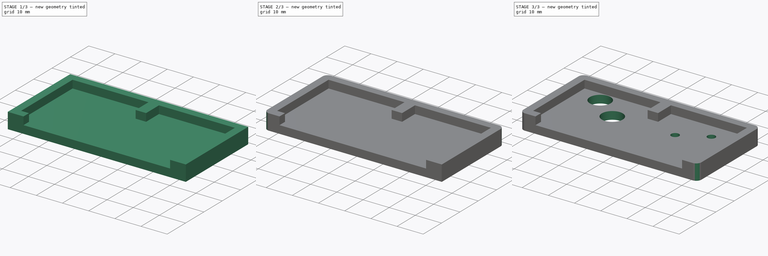
[diagram: build sequence overview — one tinted view per stage of 3, left to right]
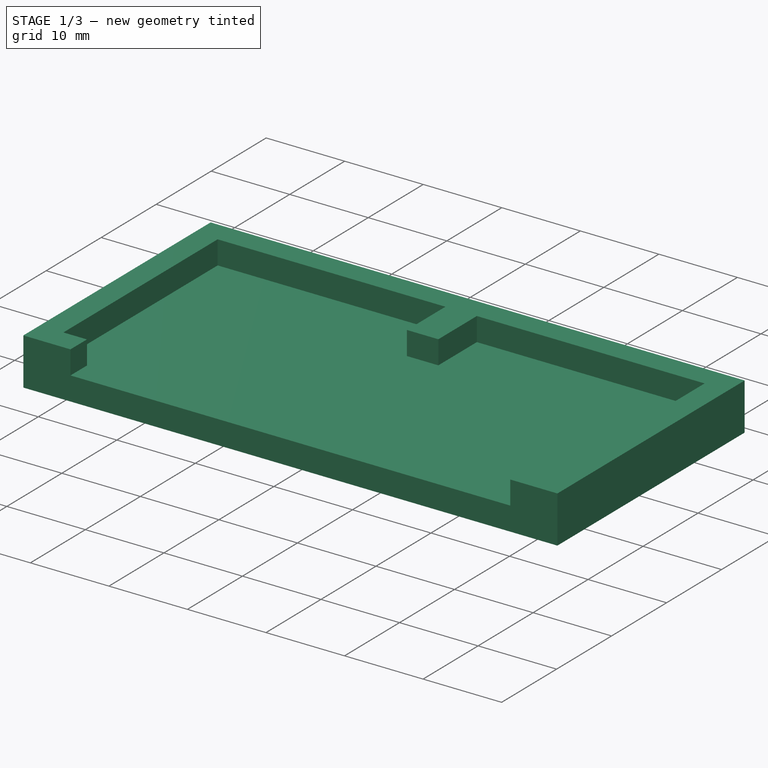
[diagram: stage 1 of 3 — iso view after this stage's code; geometry added in this stage tinted green]
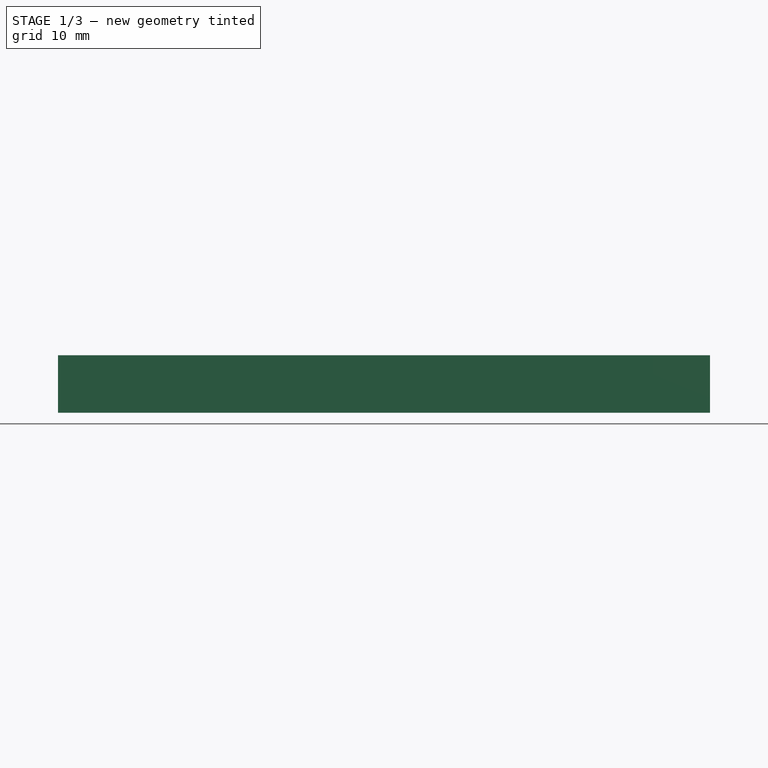
[diagram: stage 1 of 3 — front view after this stage's code; geometry added in this stage tinted green]
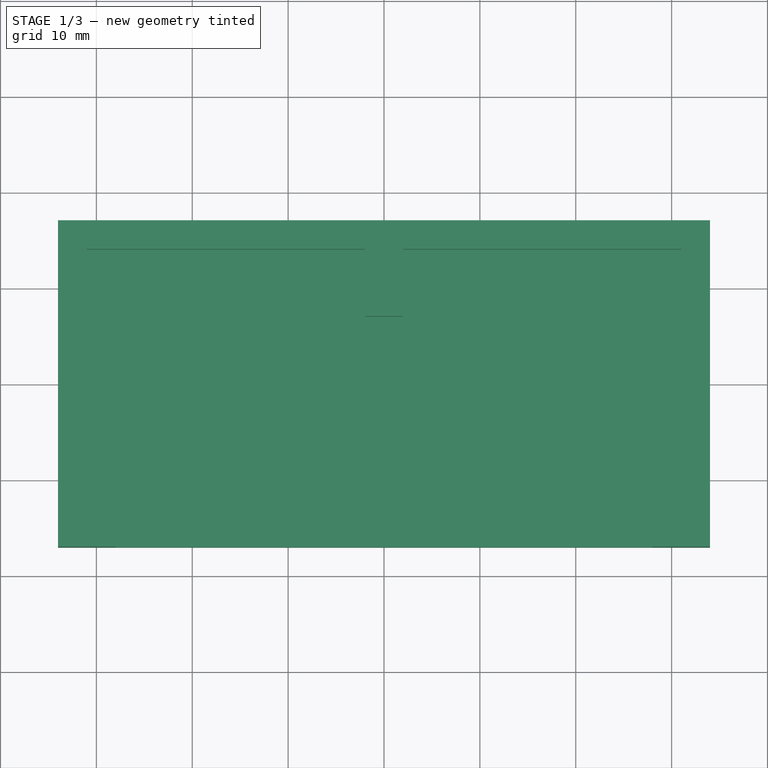
[diagram: stage 1 of 3 — top view after this stage's code; geometry added in this stage tinted green]
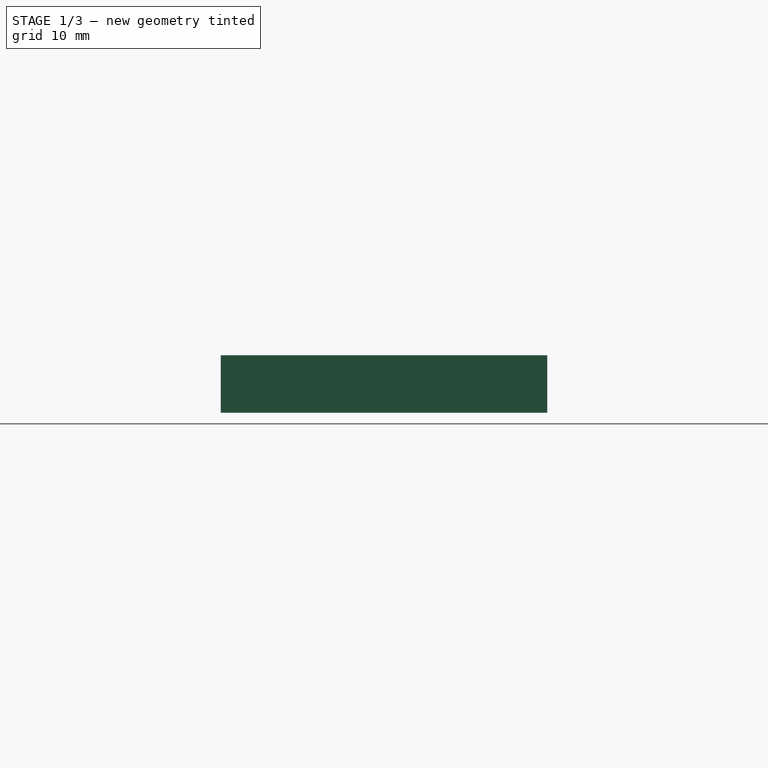
[diagram: stage 1 of 3 — right view after this stage's code; geometry added in this stage tinted green]
FCSTD DOCUMENT  (FreeCAD 1.0R38641 +678 (Git))
Label: Cutter Outer Body v1
License: All rights reserved
LicenseURL: https://en.wikipedia.org/wiki/All_rights_reserved
objects: PartDesign::Fillet×4, Sketcher::SketchObject×3, PartDesign::Pad×2, PartDesign::Pocket×1, PartDesign::Body×1
note: 28 computed .brp shape members not serialized (recipe doc carries the construction recipe); baked Part::Feature solids carry a one-line shape summary decoded from their .brp

FEATURE [Sketcher::SketchObject] Sketch
  ArcFitTolerance = 1e-06
  AttachmentSupport = -> [XY_Plane]
  FullyConstrained = true
  MakeInternals = false
  MapMode = 5
  sketch-geometry (4):
    g0: LineSegment StartX=-34 StartY=17.05 StartZ=0 EndX=-34 EndY=-17 EndZ=0
    g1: LineSegment StartX=-34 StartY=-17 StartZ=0 EndX=34 EndY=-17 EndZ=0
    g2: LineSegment StartX=34 StartY=-17 StartZ=0 EndX=34 EndY=17.05 EndZ=0
    g3: LineSegment StartX=34 StartY=17.05 StartZ=0 EndX=-34 EndY=17.05 EndZ=0
  constraints (12):
    c: Coincident(g0,g1)
    c: Coincident(g1,g2)
    c: Coincident(g2,g3)
    c: Coincident(g3,g0)
    c: Vertical(g0)
    c: Vertical(g2)
    c: Horizontal(g1)
    c: Horizontal(g3)
    c: DistanceX(g3,g3) = 68
    c: DistanceX(g0,g-1) = 34
    c: DistanceY(g2,g2) = 34.05
    c: DistanceY(g1,g-1) = 17
FEATURE [PartDesign::Pad] Pad
  Direction = (0,0,1)
  Length = 3
  Length2 = 10
  Profile = -> Sketch
  ReferenceAxis = -> Sketch [N_Axis]
  Refine = true
  Suppressed = false
  Type = 0
FEATURE [Sketcher::SketchObject] Sketch001
  ArcFitTolerance = 1e-06
  AttachmentSupport = -> [Pad]
  ExternalGeometry = -> [Pad]
  FullyConstrained = true
  MakeInternals = false
  MapMode = 5
  Placement = pos=(0,0,3) rot=(0,0,1;0rad)
  sketch-geometry (16):
    g0: LineSegment StartX=-34 StartY=17.05 StartZ=0 EndX=-34 EndY=-17 EndZ=0
    g1: LineSegment StartX=-34 StartY=-17 StartZ=0 EndX=-28 EndY=-17 EndZ=0
    g2: LineSegment StartX=34 StartY=-17 StartZ=0 EndX=28 EndY=-17 EndZ=0
    g3: LineSegment StartX=34 StartY=-17 StartZ=0 EndX=34 EndY=17.05 EndZ=0
    g4: LineSegment StartX=34 StartY=17.05 StartZ=0 EndX=-34 EndY=17.05 EndZ=0
    g5: LineSegment StartX=-28 StartY=-17 StartZ=0 EndX=-28 EndY=-14 EndZ=0
    g6: LineSegment StartX=-28 StartY=-14 StartZ=0 EndX=-31 EndY=-14 EndZ=0
    g7: LineSegment StartX=-31 StartY=-14 StartZ=0 EndX=-31 EndY=14.05 EndZ=0
    g8: LineSegment StartX=-31 StartY=14.05 StartZ=0 EndX=-2 EndY=14.05 EndZ=0
    g9: LineSegment StartX=31 StartY=14.05 StartZ=0 EndX=31 EndY=-14 EndZ=0
    g10: LineSegment StartX=31 StartY=-14 StartZ=0 EndX=28 EndY=-14 EndZ=0
    g11: LineSegment StartX=28 StartY=-14 StartZ=0 EndX=28 EndY=-17 EndZ=0
    g12: LineSegment StartX=-2 StartY=14.05 StartZ=0 EndX=-2 EndY=7.05 EndZ=0
    g13: LineSegment StartX=-2 StartY=7.05 StartZ=0 EndX=2 EndY=7.05 EndZ=0
    g14: LineSegment StartX=2 StartY=7.05 StartZ=0 EndX=2 EndY=14.05 EndZ=0
    g15: LineSegment StartX=2 StartY=14.05 StartZ=0 EndX=31 EndY=14.05 EndZ=0
  constraints (45):
    c: Coincident(g0,g-6)
    c: Coincident(g0,g-6)
    c: Coincident(g1,g0)
    c: PointOnObject(g1,g-5)
    c: Coincident(g2,g-5)
    c: PointOnObject(g2,g-5)
    c: Coincident(g3,g2)
    c: Coincident(g3,g-4)
    c: Coincident(g4,g3)
    c: Coincident(g4,g0)
    c: Coincident(g5,g1)
    c: Vertical(g5)
    c: Coincident(g6,g5)
    c: Horizontal(g6)
    c: Coincident(g7,g6)
    c: Vertical(g7)
    c: Coincident(g8,g7)
    c: Horizontal(g8)
    c: Coincident(g9,g15)
    c: Vertical(g9)
    c: Coincident(g10,g9)
    c: Horizontal(g10)
    c: Coincident(g11,g10)
    c: Coincident(g11,g2)
    c: DistanceX(g0,g7) = 3
    c: DistanceY(g7,g0) = 3
    c: DistanceX(g15,g3) = 3
    c: DistanceX(g0,g1) = 6
    c: DistanceX(g2,g2) = 6
    c: Vertical(g11)
    c: DistanceY(g1,g5) = 3
    c: DistanceY(g2,g10) = 3
    c: Vertical(g12)
    c: Coincident(g13,g12)
    c: Horizontal(g13)
    c: Coincident(g14,g13)
    c: PointOnObject(g14,g15)
    c: Vertical(g14)
    c: Coincident(g8,g12)
    c: PointOnObject(g15,g14)
    c: DistanceX(g13,g13) = 4
    c: DistanceX(g-1,g13) = 2
    c: DistanceY(g13,g14) = 7
    c: Horizontal(g15)
    c: DistanceY(g9,g3) = 3
FEATURE [PartDesign::Pad] Pad001
  BaseFeature = -> Pad
  Direction = (0,0,1)
  Length = 3
  Length2 = 10
  Profile = -> Sketch001
  ReferenceAxis = -> Sketch001 [N_Axis]
  Refine = true
  Suppressed = false
  Type = 0
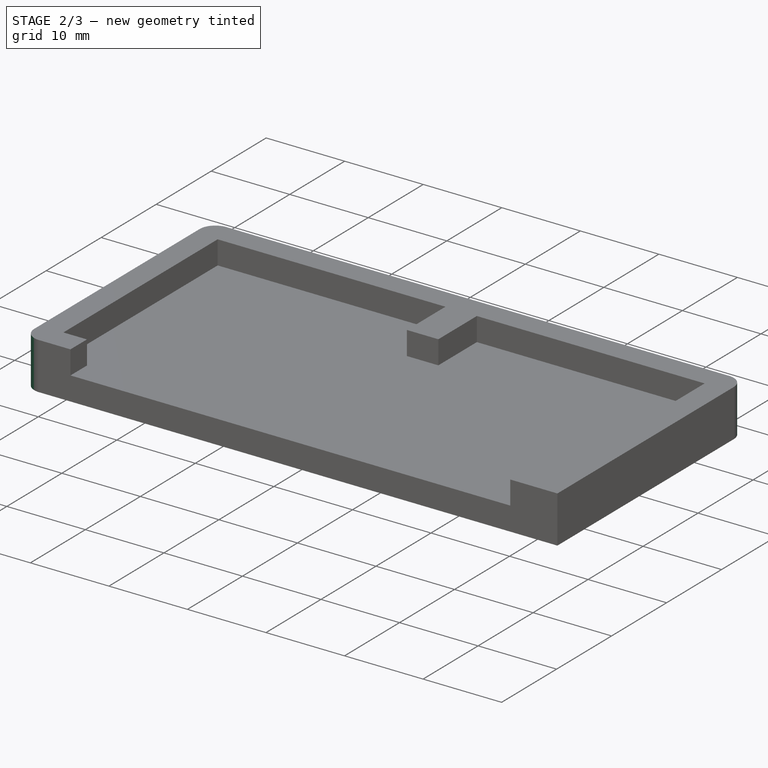
[diagram: stage 2 of 3 — iso view after this stage's code; geometry added in this stage tinted green]
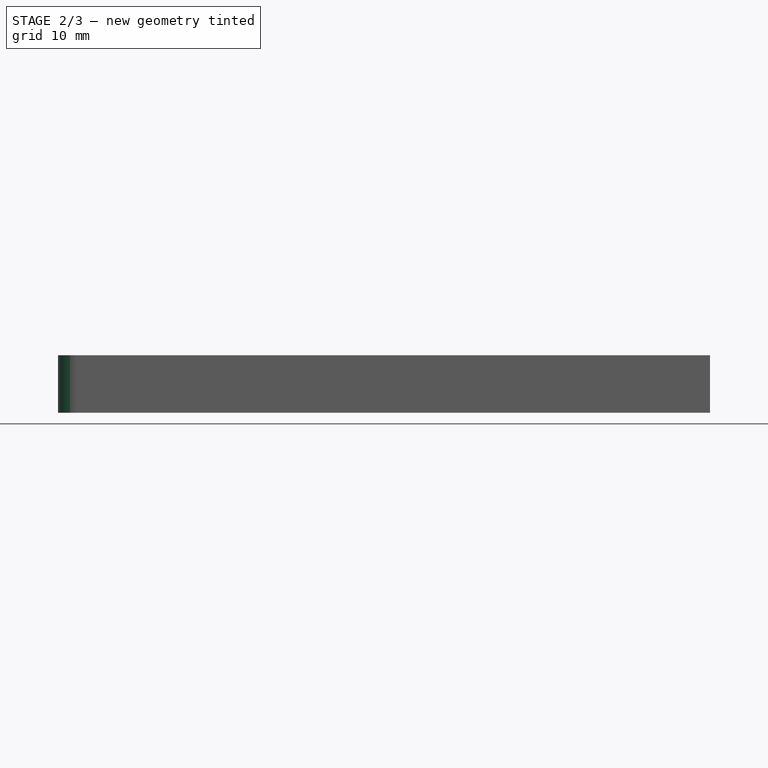
[diagram: stage 2 of 3 — front view after this stage's code; geometry added in this stage tinted green]
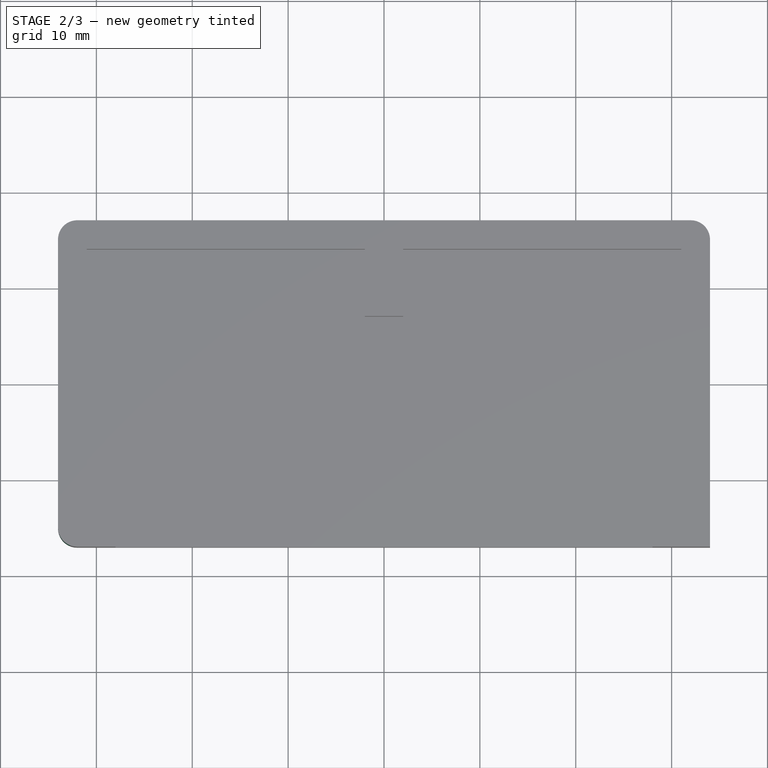
[diagram: stage 2 of 3 — top view after this stage's code; geometry added in this stage tinted green]
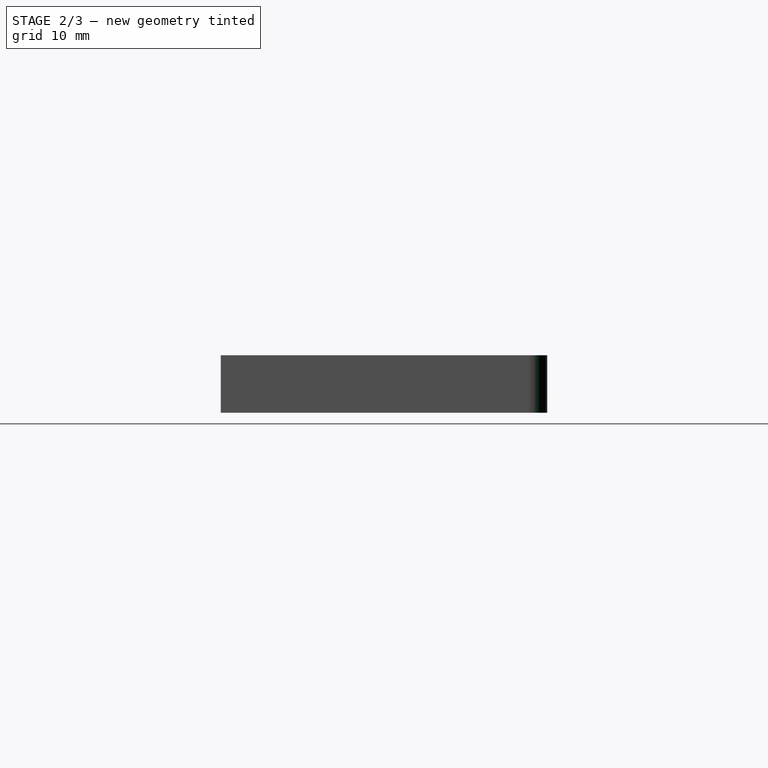
[diagram: stage 2 of 3 — right view after this stage's code; geometry added in this stage tinted green]
FEATURE [PartDesign::Fillet] Fillet
  Base = -> Pad001 [Edge5]
  BaseFeature = -> Pad001
  Radius = 2
  Refine = true
  SupportTransform = false
  Suppressed = false
  UseAllEdges = false
FEATURE [PartDesign::Fillet] Fillet001
  Base = -> Fillet [Edge7]
  BaseFeature = -> Fillet
  Radius = 2
  Refine = true
  SupportTransform = false
  Suppressed = false
  UseAllEdges = false
FEATURE [PartDesign::Fillet] Fillet002
  Base = -> Fillet001 [Edge14]
  BaseFeature = -> Fillet001
  Radius = 2
  Refine = true
  SupportTransform = false
  Suppressed = false
  UseAllEdges = false
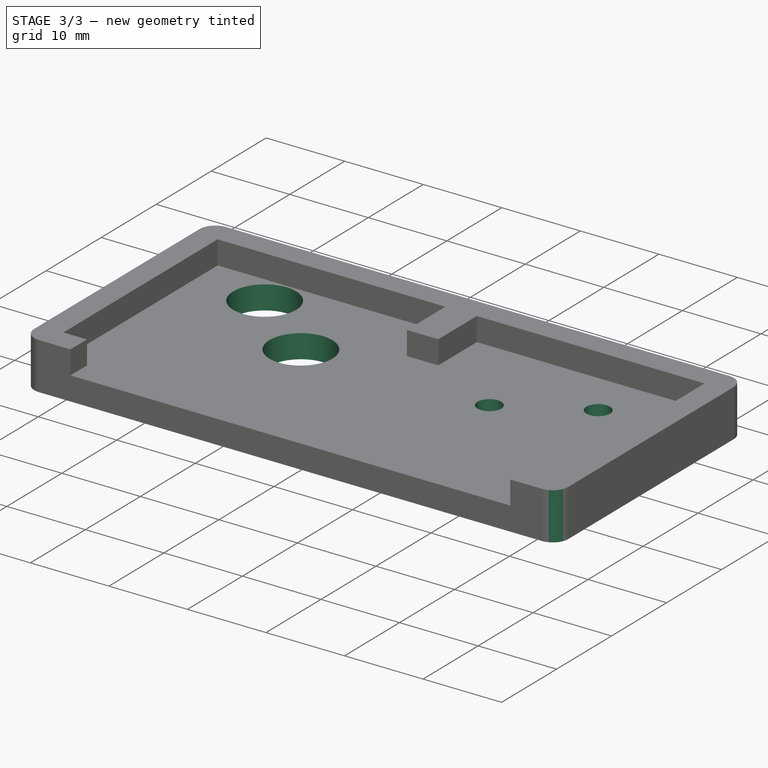
[diagram: stage 3 of 3 — iso view after this stage's code; geometry added in this stage tinted green]
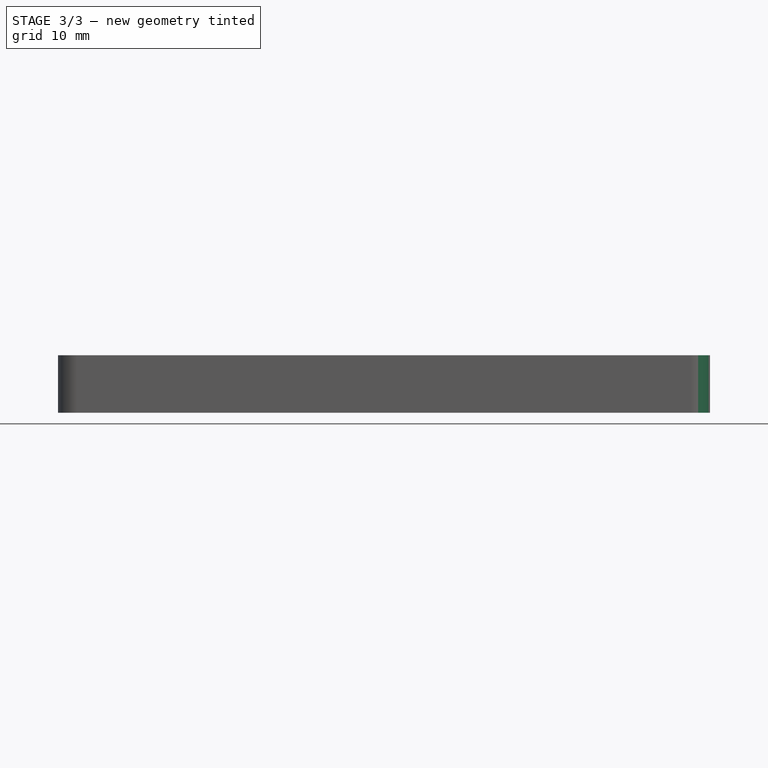
[diagram: stage 3 of 3 — front view after this stage's code; geometry added in this stage tinted green]
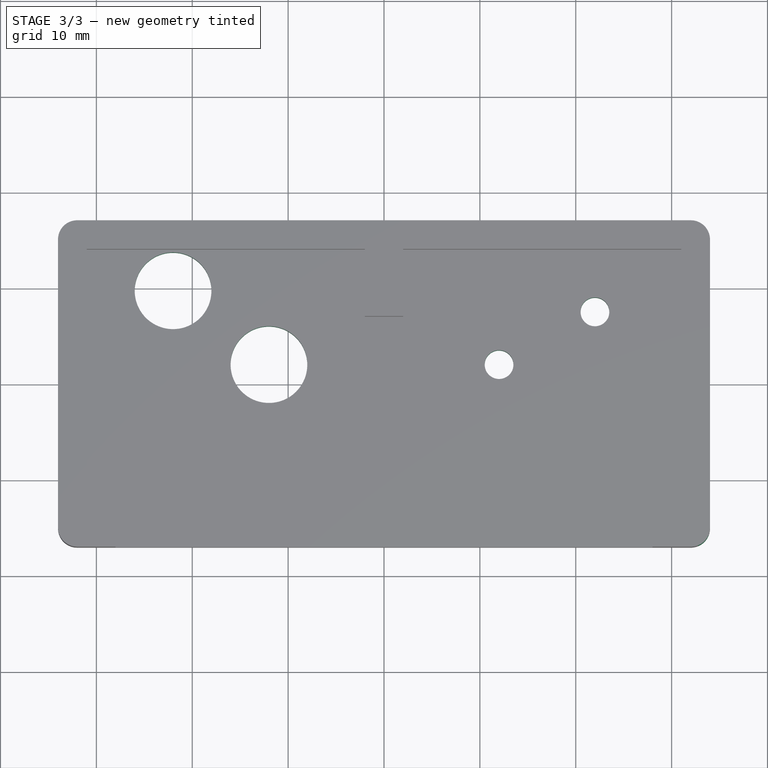
[diagram: stage 3 of 3 — top view after this stage's code; geometry added in this stage tinted green]
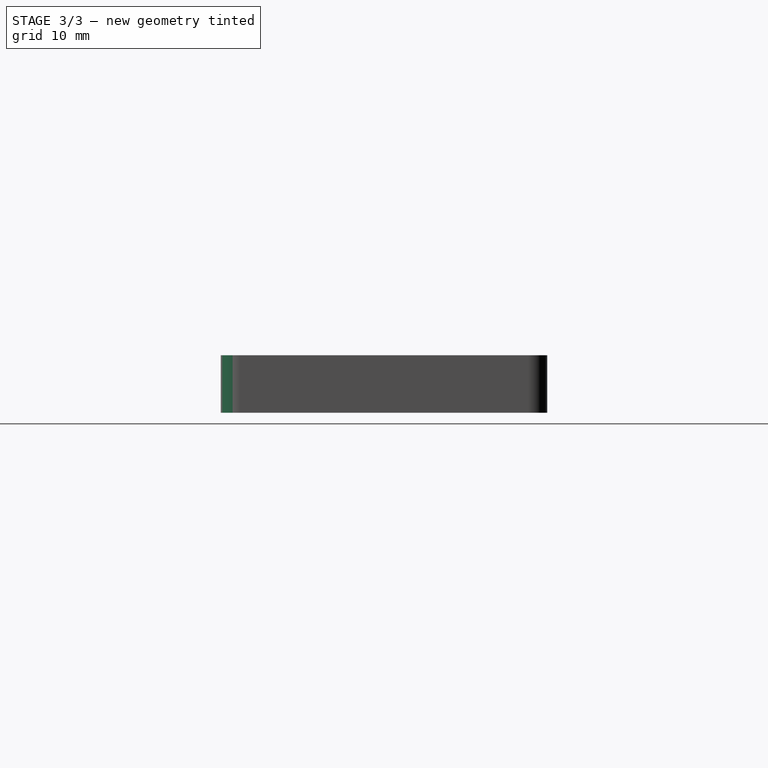
[diagram: stage 3 of 3 — right view after this stage's code; geometry added in this stage tinted green]
FEATURE [PartDesign::Fillet] Fillet003
  Base = -> Fillet002 [Edge15]
  BaseFeature = -> Fillet002
  Radius = 2
  Refine = true
  SupportTransform = false
  Suppressed = false
  UseAllEdges = false
FEATURE [Sketcher::SketchObject] Sketch002
  ArcFitTolerance = 1e-06
  AttachmentSupport = -> [Fillet003]
  ExternalGeometry = -> [Fillet003]
  FullyConstrained = true
  MakeInternals = false
  MapMode = 5
  Placement = pos=(0,0,3) rot=(0,0,1;0rad)
  sketch-geometry (4):
    g0: Circle CenterX=-12 CenterY=2.05 CenterZ=0 NormalX=0 NormalY=0 NormalZ=1 AngleXU=0 Radius=4
    g1: Circle CenterX=-22 CenterY=9.75 CenterZ=0 NormalX=0 NormalY=0 NormalZ=1 AngleXU=0 Radius=4
    g2: Circle CenterX=12 CenterY=2.05 CenterZ=0 NormalX=0 NormalY=0 NormalZ=1 AngleXU=0 Radius=1.5
    g3: Circle CenterX=22 CenterY=7.55 CenterZ=0 NormalX=0 NormalY=0 NormalZ=1 AngleXU=0 Radius=1.5
  constraints (12):
    c: Diameter(g1) = 8
    c: Diameter(g0) = 8
    c: Diameter(g2) = 3
    c: Diameter(g3) = 3
    c: DistanceY(g0,g2) = 0
    c: DistanceY(g-3,g3) = 0.5
    c: DistanceY(g-3,g1) = 2.7
    c: DistanceY(g0,g-3) = 5
    c: DistanceX(g0,g-3) = 10
    c: DistanceX(g1,g-3) = 20
    c: DistanceX(g-3,g2) = 10
    c: DistanceX(g-3,g3) = 20
FEATURE [PartDesign::Pocket] Pocket
  BaseFeature = -> Fillet003
  Direction = (0,0,-1)
  Length = 5
  Length2 = 5
  Profile = -> Sketch002
  ReferenceAxis = -> Sketch002 [N_Axis]
  Refine = true
  Suppressed = false
  Type = 0
FEATURE [PartDesign::Body] Body
  AllowCompound = false
  Group = -> [Sketch,Pad,Sketch001,Pad001,Fillet,Fillet001,Fillet002,Fillet003,Sketch002,Pocket]
  Origin = -> Origin
  Tip = -> Pocket
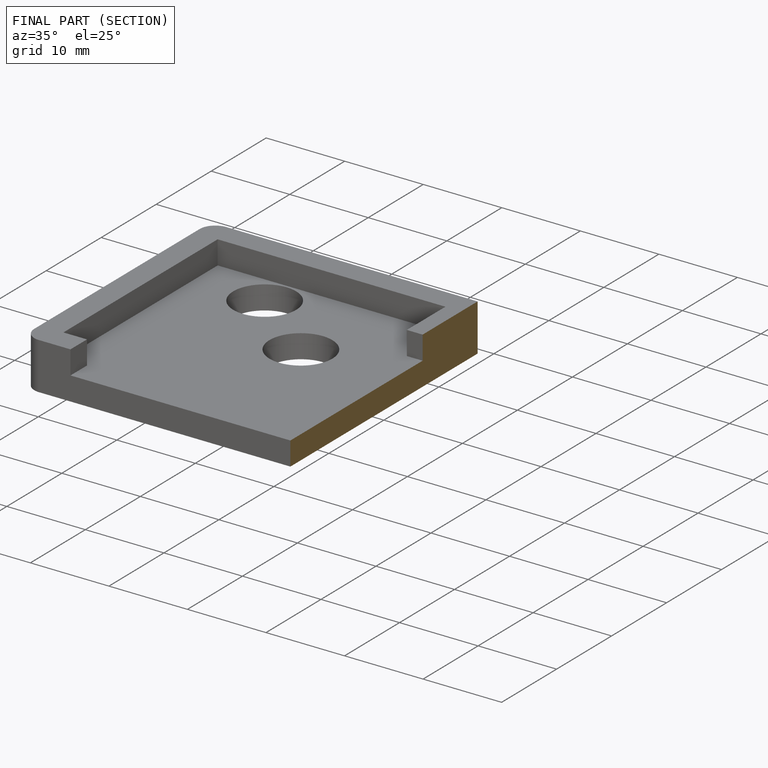
[diagram: finished part — half-section view (interior)]
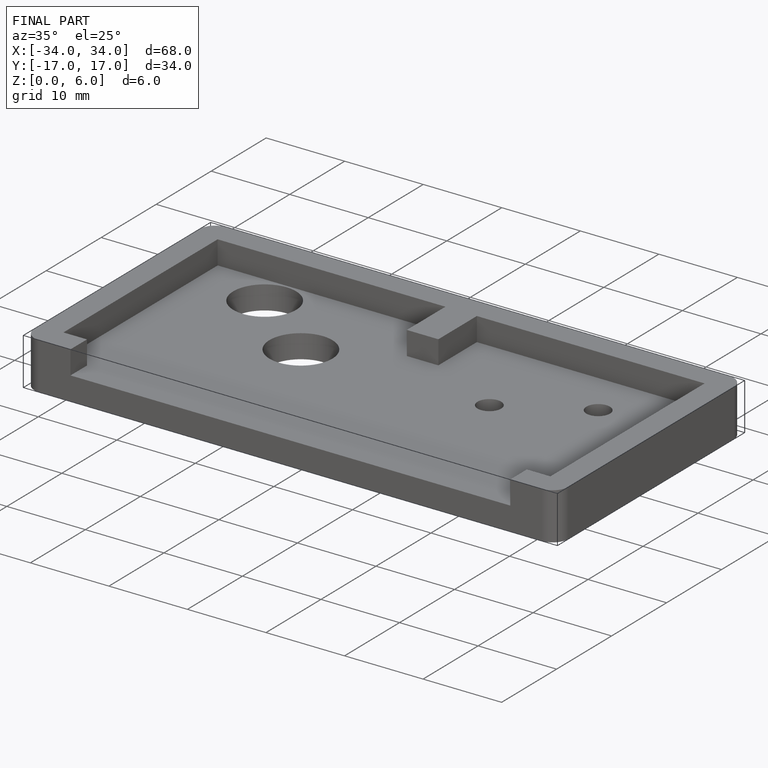
[diagram: finished part — iso view with bounding-box wireframe]
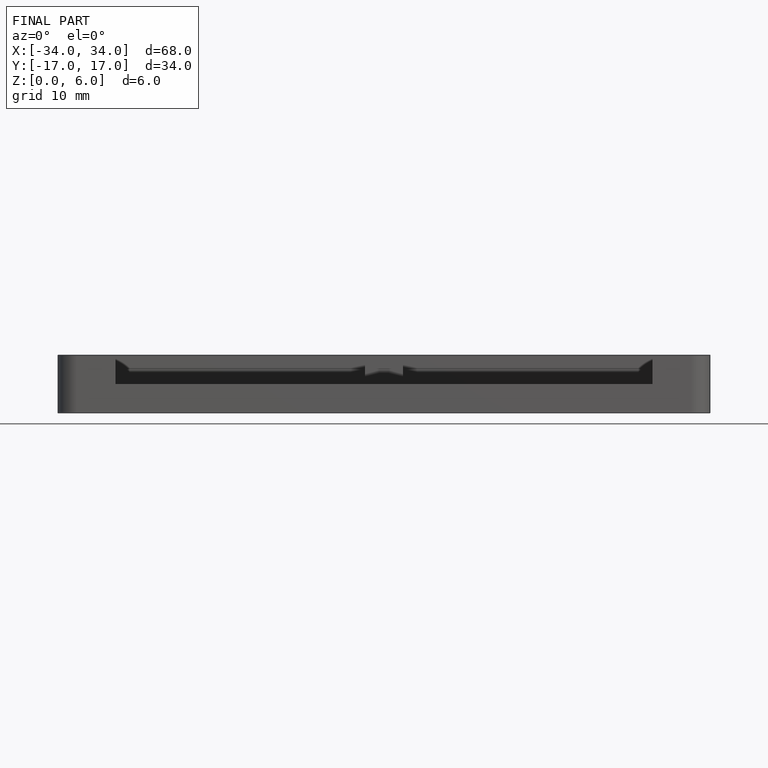
[diagram: finished part — front view with bounding-box wireframe]
